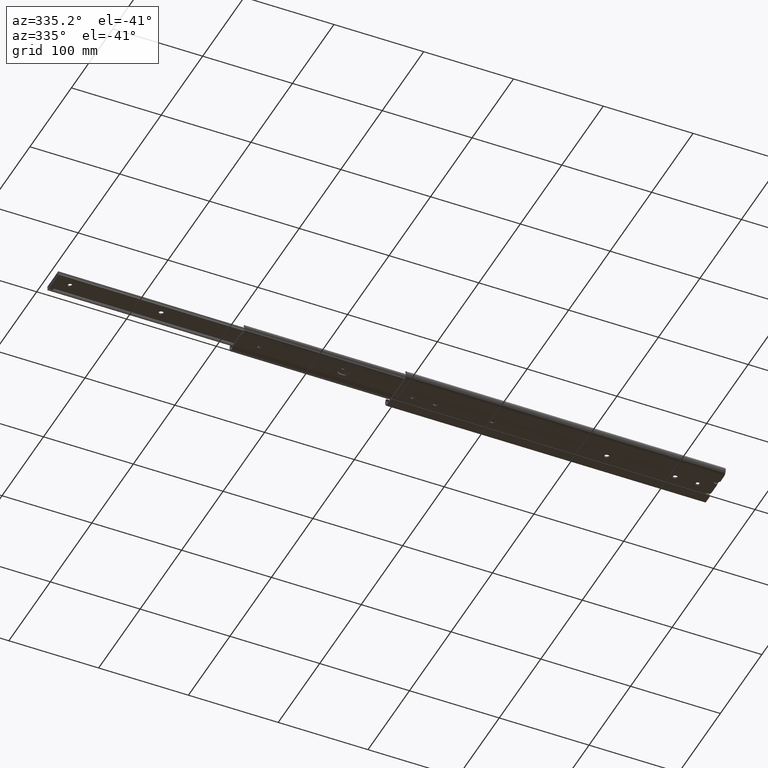
[diagram: clean part render]
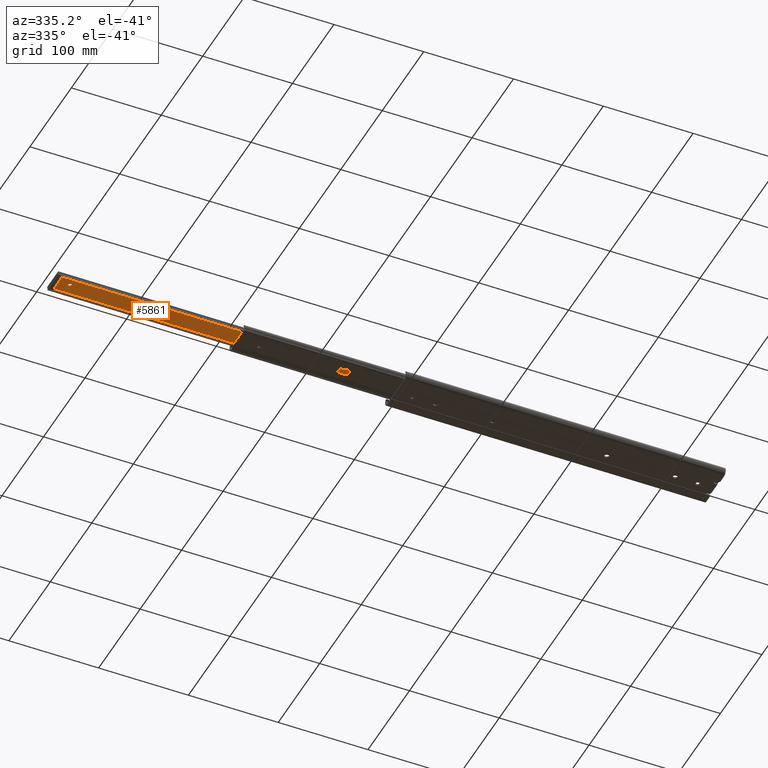
[diagram: same view with one face highlighted and labeled with its STEP entity id]
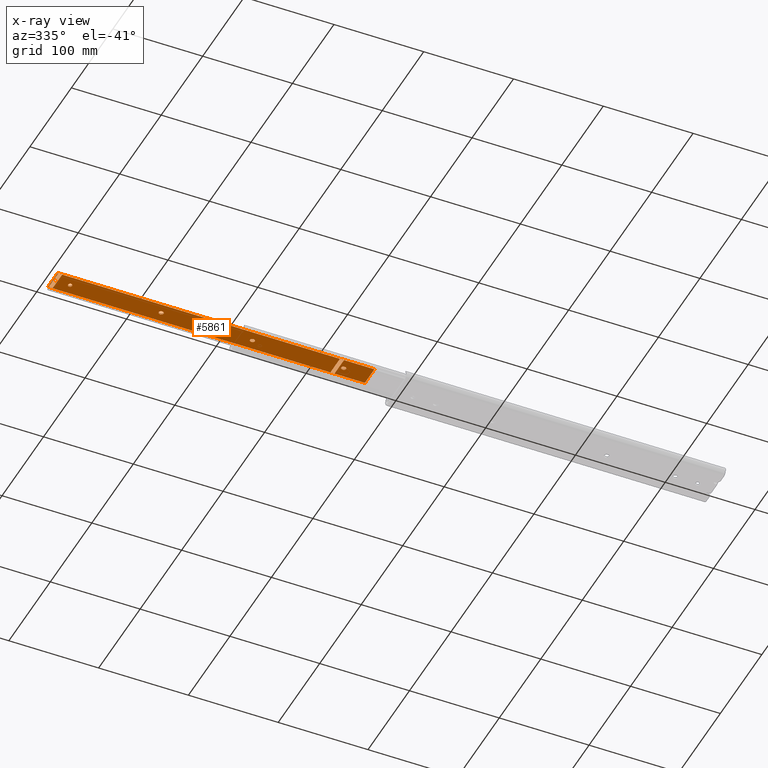
[diagram: x-ray of the same camera — body ghosted, the highlighted face saturated]
A machine part, auxiliary view. The second image highlights one B-rep face of the part: STEP entity #5861.
The next image is the same camera in x-ray: the body ghosted, the highlighted face saturated — about 0% of this face is hidden behind the body in this view.
In plain terms, the highlighted planar face has unit normal (0, -0, -1).
Its self-contained STEP definition (entity closure, byte-faithful):
#17 = VERTEX_POINT ( 'NONE', #5053 ) ;
#94 = VERTEX_POINT ( 'NONE', #1399 ) ;
#98 = FACE_BOUND ( 'NONE', #6594, .T. ) ;
#159 = CIRCLE ( 'NONE', #7297, 2.249999999999999100 ) ;
#167 = LINE ( 'NONE', #947, #6438 ) ;
#200 = EDGE_CURVE ( 'NONE', #6894, #4006, #6104, .T. ) ;
#232 = LINE ( 'NONE', #2654, #4886 ) ;
#288 = ORIENTED_EDGE ( 'NONE', *, *, #588, .F. ) ;
#291 = CARTESIAN_POINT ( 'NONE',  ( 323.5000000000000000, 5.588865424958728100E-015, -1.599999999999959500 ) ) ;
#294 = FACE_BOUND ( 'NONE', #4866, .T. ) ;
#316 = EDGE_LOOP ( 'NONE', ( #778, #6200, #5467, #891 ) ) ;
#338 = VECTOR ( 'NONE', #826, 1000.000000000000000 ) ;
#356 = CARTESIAN_POINT ( 'NONE',  ( 120.3000000000000000, 5.588865424958728100E-015, -1.599999999999959500 ) ) ;
#401 = AXIS2_PLACEMENT_3D ( 'NONE', #4529, #901, #5163 ) ;
#478 = VERTEX_POINT ( 'NONE', #6080 ) ;
#532 = EDGE_CURVE ( 'NONE', #478, #3820, #2227, .T. ) ;
#585 = EDGE_CURVE ( 'NONE', #7189, #2140, #3316, .T. ) ;
#588 = EDGE_CURVE ( 'NONE', #2140, #7189, #4941, .T. ) ;
#594 = CARTESIAN_POINT ( 'NONE',  ( 221.8999999999999800, 5.588865424958728100E-015, -1.599999999999959500 ) ) ;
#602 = VECTOR ( 'NONE', #4926, 1000.000000000000000 ) ;
#627 = VERTEX_POINT ( 'NONE', #2065 ) ;
#703 = VERTEX_POINT ( 'NONE', #5578 ) ;
#720 = CARTESIAN_POINT ( 'NONE',  ( 324.3000000000000100, 2.249999999999999100, -1.599999999999959900 ) ) ;
#778 = ORIENTED_EDGE ( 'NONE', *, *, #7596, .F. ) ;
#803 = CARTESIAN_POINT ( 'NONE',  ( 318.8999999999999800, 11.00000000000000000, -1.599999999999960800 ) ) ;
#826 = DIRECTION ( 'NONE',  ( -1.000000000000000000, 0.0000000000000000000, 0.0000000000000000000 ) ) ;
#835 = CARTESIAN_POINT ( 'NONE',  ( 314.4000000000000300, 11.00000000000000000, -1.599999999999960800 ) ) ;
#891 = ORIENTED_EDGE ( 'NONE', *, *, #200, .F. ) ;
#901 = DIRECTION ( 'NONE',  ( 0.0000000000000000000, -1.313188302234630400E-016, -1.000000000000000000 ) ) ;
#910 = DIRECTION ( 'NONE',  ( 0.0000000000000000000, 1.000000000000000000, -9.637352644315598900E-017 ) ) ;
#921 = CARTESIAN_POINT ( 'NONE',  ( 222.7000000000000200, 5.686837168890518100E-015, -1.599999999999959500 ) ) ;
#933 = VERTEX_POINT ( 'NONE', #6491 ) ;
#947 = CARTESIAN_POINT ( 'NONE',  ( 352.8000000000000100, 2.249999999999998700, -1.599999999999959500 ) ) ;
#985 = DIRECTION ( 'NONE',  ( 0.0000000000000000000, 1.000000000000000000, -9.637352644315598900E-017 ) ) ;
#1088 = VECTOR ( 'NONE', #4314, 1000.000000000000000 ) ;
#1116 = ORIENTED_EDGE ( 'NONE', *, *, #1292, .F. ) ;
#1120 = VECTOR ( 'NONE', #2499, 1000.000000000000000 ) ;
#1136 = ORIENTED_EDGE ( 'NONE', *, *, #585, .F. ) ;
#1149 = ORIENTED_EDGE ( 'NONE', *, *, #4191, .F. ) ;
#1199 = DIRECTION ( 'NONE',  ( 0.0000000000000000000, 1.000000000000000000, -9.637352644315598900E-017 ) ) ;
#1245 = VECTOR ( 'NONE', #2434, 1000.000000000000000 ) ;
#1261 = ORIENTED_EDGE ( 'NONE', *, *, #532, .F. ) ;
#1292 = EDGE_CURVE ( 'NONE', #7730, #2326, #5231, .T. ) ;
#1359 = CARTESIAN_POINT ( 'NONE',  ( 121.1000000000000100, 5.686837168890518100E-015, -1.599999999999959500 ) ) ;
#1399 = CARTESIAN_POINT ( 'NONE',  ( 222.7000000000000200, 2.249999999999999100, -1.599999999999959900 ) ) ;
#1427 = AXIS2_PLACEMENT_3D ( 'NONE', #3777, #4372, #3748 ) ;
#1461 = EDGE_CURVE ( 'NONE', #7728, #7579, #2453, .T. ) ;
#1537 = DIRECTION ( 'NONE',  ( 0.0000000000000000000, 1.000000000000000000, -9.637352644315598900E-017 ) ) ;
#1561 = DIRECTION ( 'NONE',  ( 1.000000000000000000, 0.0000000000000000000, 0.0000000000000000000 ) ) ;
#1572 = DIRECTION ( 'NONE',  ( 0.0000000000000000000, -1.313188302234630400E-016, -1.000000000000000000 ) ) ;
#1668 = EDGE_CURVE ( 'NONE', #6716, #7590, #4153, .T. ) ;
#1729 = FACE_BOUND ( 'NONE', #3523, .T. ) ;
#1746 = ORIENTED_EDGE ( 'NONE', *, *, #7294, .F. ) ;
#1751 = DIRECTION ( 'NONE',  ( 0.0000000000000000000, -1.313188302234630400E-016, -1.000000000000000000 ) ) ;
#1775 = EDGE_CURVE ( 'NONE', #703, #6783, #159, .T. ) ;
#1788 = VECTOR ( 'NONE', #2620, 1000.000000000000000 ) ;
#1805 = CARTESIAN_POINT ( 'NONE',  ( 324.3000000000000100, -2.249999999999998700, -1.599999999999959000 ) ) ;
#1810 = CARTESIAN_POINT ( 'NONE',  ( 323.5000000000000000, 2.249999999999999100, -1.599999999999959500 ) ) ;
#1841 = DIRECTION ( 'NONE',  ( 1.000000000000000000, -0.0000000000000000000, -0.0000000000000000000 ) ) ;
#1842 = VERTEX_POINT ( 'NONE', #2779 ) ;
#1866 = ORIENTED_EDGE ( 'NONE', *, *, #7788, .F. ) ;
#1880 = CARTESIAN_POINT ( 'NONE',  ( 0.0000000000000000000, -11.55876151879170900, -1.599999999999957900 ) ) ;
#1938 = VECTOR ( 'NONE', #3460, 1000.000000000000000 ) ;
#1952 = CARTESIAN_POINT ( 'NONE',  ( 352.8000000000000100, -11.55876151879170900, -1.599999999999957900 ) ) ;
#1962 = DIRECTION ( 'NONE',  ( 0.0000000000000000000, 1.000000000000000000, -9.637352644315598900E-017 ) ) ;
#1969 = PLANE ( 'NONE',  #4258 ) ;
#1974 = AXIS2_PLACEMENT_3D ( 'NONE', #1359, #5620, #1962 ) ;
#2021 = ORIENTED_EDGE ( 'NONE', *, *, #2492, .F. ) ;
#2040 = CARTESIAN_POINT ( 'NONE',  ( 0.5000000000000022200, 11.00000000000000000, -1.599999999999960800 ) ) ;
#2049 = LINE ( 'NONE', #6549, #5289 ) ;
#2065 = CARTESIAN_POINT ( 'NONE',  ( 5.000000000000001800, 11.00000000000000000, -1.599999999999960800 ) ) ;
#2120 = CARTESIAN_POINT ( 'NONE',  ( 221.8999999999999800, -2.249999999999999100, -1.599999999999959000 ) ) ;
#2140 = VERTEX_POINT ( 'NONE', #5480 ) ;
#2227 = LINE ( 'NONE', #3618, #602 ) ;
#2242 = AXIS2_PLACEMENT_3D ( 'NONE', #7446, #1572, #4564 ) ;
#2281 = VERTEX_POINT ( 'NONE', #3203 ) ;
#2326 = VERTEX_POINT ( 'NONE', #4485 ) ;
#2353 = VECTOR ( 'NONE', #4986, 1000.000000000000000 ) ;
#2384 = ORIENTED_EDGE ( 'NONE', *, *, #6972, .F. ) ;
#2434 = DIRECTION ( 'NONE',  ( -1.000000000000000000, 0.0000000000000000000, 0.0000000000000000000 ) ) ;
#2453 = CIRCLE ( 'NONE', #3407, 2.249999999999999100 ) ;
#2480 = EDGE_CURVE ( 'NONE', #6791, #7728, #4666, .T. ) ;
#2492 = EDGE_CURVE ( 'NONE', #6783, #5203, #2686, .T. ) ;
#2499 = DIRECTION ( 'NONE',  ( -1.000000000000000000, 0.0000000000000000000, 0.0000000000000000000 ) ) ;
#2542 = EDGE_CURVE ( 'NONE', #4006, #627, #4097, .T. ) ;
#2620 = DIRECTION ( 'NONE',  ( 0.0000000000000000000, -1.000000000000000000, 1.379893674072460500E-016 ) ) ;
#2638 = CARTESIAN_POINT ( 'NONE',  ( 318.8999999999999800, -11.00000000000000000, -1.599999999999957900 ) ) ;
#2654 = CARTESIAN_POINT ( 'NONE',  ( 314.3999999999999800, 11.00000000000000000, -1.599999999999960800 ) ) ;
#2686 = LINE ( 'NONE', #6054, #1245 ) ;
#2692 = DIRECTION ( 'NONE',  ( 0.0000000000000000000, -1.313188302234630400E-016, -1.000000000000000000 ) ) ;
#2736 = LINE ( 'NONE', #7298, #1120 ) ;
#2749 = ORIENTED_EDGE ( 'NONE', *, *, #7632, .F. ) ;
#2776 = CIRCLE ( 'NONE', #5787, 2.249999999999999100 ) ;
#2779 = CARTESIAN_POINT ( 'NONE',  ( 352.8000000000000100, 11.55876151879170900, -1.599999999999960800 ) ) ;
#2821 = DIRECTION ( 'NONE',  ( 1.000000000000000000, 0.0000000000000000000, 0.0000000000000000000 ) ) ;
#2825 = CARTESIAN_POINT ( 'NONE',  ( 4.999999999999999100, -11.00000000000000000, -1.599999999999957900 ) ) ;
#2864 = EDGE_CURVE ( 'NONE', #3820, #6891, #4851, .T. ) ;
#2915 = EDGE_CURVE ( 'NONE', #6891, #6898, #3040, .T. ) ;
#2919 = DIRECTION ( 'NONE',  ( -1.000000000000000000, -0.0000000000000000000, -0.0000000000000000000 ) ) ;
#3010 = CIRCLE ( 'NONE', #6696, 2.249999999999999100 ) ;
#3037 = LINE ( 'NONE', #7123, #7666 ) ;
#3040 = LINE ( 'NONE', #4628, #5889 ) ;
#3116 = EDGE_LOOP ( 'NONE', ( #6261, #1149, #3245, #5102 ) ) ;
#3127 = ORIENTED_EDGE ( 'NONE', *, *, #4671, .F. ) ;
#3131 = ORIENTED_EDGE ( 'NONE', *, *, #5483, .F. ) ;
#3168 = EDGE_CURVE ( 'NONE', #1842, #6716, #7578, .T. ) ;
#3184 = CARTESIAN_POINT ( 'NONE',  ( 352.8000000000000100, 11.55876151879170900, -1.599999999999960800 ) ) ;
#3193 = CIRCLE ( 'NONE', #5506, 2.249999999999999100 ) ;
#3203 = CARTESIAN_POINT ( 'NONE',  ( 221.8999999999999800, 2.249999999999999100, -1.599999999999959500 ) ) ;
#3228 = CARTESIAN_POINT ( 'NONE',  ( 318.8999999999999800, 11.00000000000000000, -1.599999999999960800 ) ) ;
#3235 = CARTESIAN_POINT ( 'NONE',  ( 0.4999999999999997800, -11.00000000000000000, -1.599999999999957900 ) ) ;
#3245 = ORIENTED_EDGE ( 'NONE', *, *, #3168, .T. ) ;
#3316 = CIRCLE ( 'NONE', #1427, 2.250000000000002200 ) ;
#3321 = CARTESIAN_POINT ( 'NONE',  ( 352.8000000000000100, 2.249999999999998700, -1.599999999999959500 ) ) ;
#3331 = FACE_BOUND ( 'NONE', #4404, .T. ) ;
#3407 = AXIS2_PLACEMENT_3D ( 'NONE', #5389, #1751, #5987 ) ;
#3460 = DIRECTION ( 'NONE',  ( -1.182766006347823100E-016, -1.000000000000000000, 1.379893674072460500E-016 ) ) ;
#3501 = CARTESIAN_POINT ( 'NONE',  ( 352.8000000000000100, -2.249999999999998700, -1.599999999999959000 ) ) ;
#3523 = EDGE_LOOP ( 'NONE', ( #4412, #1261, #7081, #6138, #7743 ) ) ;
#3528 = DIRECTION ( 'NONE',  ( -1.000000000000000000, 0.0000000000000000000, 0.0000000000000000000 ) ) ;
#3610 = AXIS2_PLACEMENT_3D ( 'NONE', #3619, #7827, #4227 ) ;
#3618 = CARTESIAN_POINT ( 'NONE',  ( 352.8000000000000100, -2.249999999999998700, -1.599999999999959000 ) ) ;
#3619 = CARTESIAN_POINT ( 'NONE',  ( 324.3000000000000100, 5.686837168890518100E-015, -1.599999999999959500 ) ) ;
#3651 = LINE ( 'NONE', #3501, #6679 ) ;
#3716 = CARTESIAN_POINT ( 'NONE',  ( 120.3000000000000000, -2.249999999999999100, -1.599999999999959000 ) ) ;
#3748 = DIRECTION ( 'NONE',  ( 0.0000000000000000000, 1.000000000000000000, -9.637352644315585400E-017 ) ) ;
#3777 = CARTESIAN_POINT ( 'NONE',  ( 19.10000000000000100, 0.0000000000000000000, -1.599999999999959000 ) ) ;
#3796 = DIRECTION ( 'NONE',  ( 0.0000000000000000000, 1.000000000000000000, -1.313188302234630400E-016 ) ) ;
#3820 = VERTEX_POINT ( 'NONE', #3716 ) ;
#3824 = CARTESIAN_POINT ( 'NONE',  ( 120.3000000000000000, 2.249999999999999100, -1.599999999999959500 ) ) ;
#3827 = CARTESIAN_POINT ( 'NONE',  ( 16.85000000000000100, 2.755455298081548200E-016, -1.599999999999959000 ) ) ;
#4006 = VERTEX_POINT ( 'NONE', #7541 ) ;
#4073 = VECTOR ( 'NONE', #6961, 1000.000000000000000 ) ;
#4097 = LINE ( 'NONE', #6082, #7109 ) ;
#4153 = LINE ( 'NONE', #1952, #2353 ) ;
#4191 = EDGE_CURVE ( 'NONE', #1842, #17, #2049, .T. ) ;
#4192 = EDGE_CURVE ( 'NONE', #7579, #4965, #3651, .T. ) ;
#4227 = DIRECTION ( 'NONE',  ( 0.0000000000000000000, 1.000000000000000000, -9.637352644315598900E-017 ) ) ;
#4258 = AXIS2_PLACEMENT_3D ( 'NONE', #3184, #7417, #3796 ) ;
#4311 = CIRCLE ( 'NONE', #401, 2.249999999999999100 ) ;
#4314 = DIRECTION ( 'NONE',  ( 1.084202172485504600E-016, 1.000000000000000000, -1.379893674072460500E-016 ) ) ;
#4356 = CARTESIAN_POINT ( 'NONE',  ( 222.7000000000000200, -2.249999999999998700, -1.599999999999959000 ) ) ;
#4372 = DIRECTION ( 'NONE',  ( 0.0000000000000000000, -1.313188302234630400E-016, -1.000000000000000000 ) ) ;
#4404 = EDGE_LOOP ( 'NONE', ( #1866, #4931, #6910, #4554, #2384 ) ) ;
#4412 = ORIENTED_EDGE ( 'NONE', *, *, #2864, .F. ) ;
#4413 = ORIENTED_EDGE ( 'NONE', *, *, #1775, .F. ) ;
#4449 = EDGE_CURVE ( 'NONE', #2326, #933, #6763, .T. ) ;
#4485 = CARTESIAN_POINT ( 'NONE',  ( 318.8999999999999800, -11.00000000000000000, -1.599999999999957900 ) ) ;
#4486 = EDGE_LOOP ( 'NONE', ( #5133, #1116, #2749, #3127 ) ) ;
#4529 = CARTESIAN_POINT ( 'NONE',  ( 222.7000000000000200, 5.686837168890518100E-015, -1.599999999999959500 ) ) ;
#4536 = DIRECTION ( 'NONE',  ( 0.0000000000000000000, -1.313188302234630400E-016, -1.000000000000000000 ) ) ;
#4554 = ORIENTED_EDGE ( 'NONE', *, *, #2480, .F. ) ;
#4564 = DIRECTION ( 'NONE',  ( 0.0000000000000000000, 1.000000000000000000, -9.637352644315585400E-017 ) ) ;
#4607 = DIRECTION ( 'NONE',  ( 0.0000000000000000000, -1.313188302234630400E-016, -1.000000000000000000 ) ) ;
#4628 = CARTESIAN_POINT ( 'NONE',  ( 352.8000000000000100, 2.249999999999998700, -1.599999999999959500 ) ) ;
#4666 = CIRCLE ( 'NONE', #3610, 2.249999999999999100 ) ;
#4671 = EDGE_CURVE ( 'NONE', #933, #7169, #232, .T. ) ;
#4731 = EDGE_CURVE ( 'NONE', #94, #703, #4311, .T. ) ;
#4756 = FACE_BOUND ( 'NONE', #4486, .T. ) ;
#4836 = DIRECTION ( 'NONE',  ( 0.0000000000000000000, -1.313188302234630400E-016, -1.000000000000000000 ) ) ;
#4851 = CIRCLE ( 'NONE', #5510, 2.249999999999999100 ) ;
#4855 = CIRCLE ( 'NONE', #1974, 2.249999999999999100 ) ;
#4857 = VERTEX_POINT ( 'NONE', #2825 ) ;
#4866 = EDGE_LOOP ( 'NONE', ( #3131, #2021, #4413, #7401, #1746 ) ) ;
#4873 = EDGE_CURVE ( 'NONE', #627, #4857, #6582, .T. ) ;
#4886 = VECTOR ( 'NONE', #5009, 1000.000000000000000 ) ;
#4926 = DIRECTION ( 'NONE',  ( -1.000000000000000000, 0.0000000000000000000, 0.0000000000000000000 ) ) ;
#4931 = ORIENTED_EDGE ( 'NONE', *, *, #4192, .F. ) ;
#4941 = CIRCLE ( 'NONE', #2242, 2.250000000000002200 ) ;
#4965 = VERTEX_POINT ( 'NONE', #5363 ) ;
#4986 = DIRECTION ( 'NONE',  ( -1.000000000000000000, -0.0000000000000000000, -0.0000000000000000000 ) ) ;
#5009 = DIRECTION ( 'NONE',  ( -0.0000000000000000000, 1.000000000000000000, -1.379893674072460500E-016 ) ) ;
#5035 = CARTESIAN_POINT ( 'NONE',  ( 123.3500000000000100, 5.686837168890518100E-015, -1.599999999999959500 ) ) ;
#5053 = CARTESIAN_POINT ( 'NONE',  ( 0.0000000000000000000, 11.55876151879170900, -1.599999999999960800 ) ) ;
#5091 = CARTESIAN_POINT ( 'NONE',  ( 121.1000000000000100, 2.249999999999999100, -1.599999999999959900 ) ) ;
#5102 = ORIENTED_EDGE ( 'NONE', *, *, #1668, .T. ) ;
#5133 = ORIENTED_EDGE ( 'NONE', *, *, #4449, .F. ) ;
#5162 = FACE_BOUND ( 'NONE', #316, .T. ) ;
#5163 = DIRECTION ( 'NONE',  ( 0.0000000000000000000, 1.000000000000000000, -9.637352644315598900E-017 ) ) ;
#5187 = DIRECTION ( 'NONE',  ( 0.0000000000000000000, -1.313188302234630400E-016, -1.000000000000000000 ) ) ;
#5203 = VERTEX_POINT ( 'NONE', #2120 ) ;
#5231 = LINE ( 'NONE', #803, #1788 ) ;
#5289 = VECTOR ( 'NONE', #2919, 1000.000000000000000 ) ;
#5363 = CARTESIAN_POINT ( 'NONE',  ( 323.5000000000000000, -2.249999999999999100, -1.599999999999959000 ) ) ;
#5381 = DIRECTION ( 'NONE',  ( 0.0000000000000000000, -1.000000000000000000, 1.313188302234630400E-016 ) ) ;
#5389 = CARTESIAN_POINT ( 'NONE',  ( 324.3000000000000100, 5.686837168890518100E-015, -1.599999999999959500 ) ) ;
#5467 = ORIENTED_EDGE ( 'NONE', *, *, #2542, .F. ) ;
#5480 = CARTESIAN_POINT ( 'NONE',  ( 21.35000000000000500, 0.0000000000000000000, -1.599999999999959000 ) ) ;
#5483 = EDGE_CURVE ( 'NONE', #5203, #2281, #2776, .T. ) ;
#5500 = VERTEX_POINT ( 'NONE', #1810 ) ;
#5506 = AXIS2_PLACEMENT_3D ( 'NONE', #6311, #2692, #6897 ) ;
#5510 = AXIS2_PLACEMENT_3D ( 'NONE', #356, #4607, #985 ) ;
#5578 = CARTESIAN_POINT ( 'NONE',  ( 224.9500000000000200, 5.686837168890518100E-015, -1.599999999999959500 ) ) ;
#5590 = VECTOR ( 'NONE', #6184, 1000.000000000000000 ) ;
#5620 = DIRECTION ( 'NONE',  ( 0.0000000000000000000, -1.313188302234630400E-016, -1.000000000000000000 ) ) ;
#5674 = EDGE_CURVE ( 'NONE', #5869, #478, #4855, .T. ) ;
#5696 = LINE ( 'NONE', #3321, #4073 ) ;
#5787 = AXIS2_PLACEMENT_3D ( 'NONE', #594, #4836, #1199 ) ;
#5861 = ADVANCED_FACE ( 'NONE', ( #3331, #294, #1729, #98, #6370, #5162, #4756 ), #1969, .T. ) ;
#5869 = VERTEX_POINT ( 'NONE', #5035 ) ;
#5879 = CARTESIAN_POINT ( 'NONE',  ( 352.8000000000000100, 11.55876151879170900, -1.599999999999960800 ) ) ;
#5889 = VECTOR ( 'NONE', #2821, 1000.000000000000000 ) ;
#5987 = DIRECTION ( 'NONE',  ( 0.0000000000000000000, 1.000000000000000000, -9.637352644315598900E-017 ) ) ;
#6054 = CARTESIAN_POINT ( 'NONE',  ( 352.8000000000000100, -2.249999999999998700, -1.599999999999959000 ) ) ;
#6080 = CARTESIAN_POINT ( 'NONE',  ( 121.1000000000000100, -2.249999999999998700, -1.599999999999959000 ) ) ;
#6082 = CARTESIAN_POINT ( 'NONE',  ( 5.000000000000001800, 11.00000000000000000, -1.599999999999960800 ) ) ;
#6104 = LINE ( 'NONE', #2040, #1088 ) ;
#6117 = EDGE_CURVE ( 'NONE', #17, #7590, #3037, .T. ) ;
#6138 = ORIENTED_EDGE ( 'NONE', *, *, #7768, .F. ) ;
#6152 = CARTESIAN_POINT ( 'NONE',  ( 318.8999999999999800, 11.00000000000000000, -1.599999999999960800 ) ) ;
#6184 = DIRECTION ( 'NONE',  ( 1.000000000000000000, -0.0000000000000000000, -0.0000000000000000000 ) ) ;
#6200 = ORIENTED_EDGE ( 'NONE', *, *, #4873, .F. ) ;
#6261 = ORIENTED_EDGE ( 'NONE', *, *, #6117, .F. ) ;
#6311 = CARTESIAN_POINT ( 'NONE',  ( 121.1000000000000100, 5.686837168890518100E-015, -1.599999999999959500 ) ) ;
#6370 = FACE_OUTER_BOUND ( 'NONE', #3116, .T. ) ;
#6438 = VECTOR ( 'NONE', #1561, 1000.000000000000000 ) ;
#6491 = CARTESIAN_POINT ( 'NONE',  ( 314.3999999999999800, -11.00000000000000000, -1.599999999999957900 ) ) ;
#6549 = CARTESIAN_POINT ( 'NONE',  ( 352.8000000000000100, 11.55876151879170900, -1.599999999999960800 ) ) ;
#6578 = CARTESIAN_POINT ( 'NONE',  ( 352.8000000000000100, -11.55876151879170900, -1.599999999999957900 ) ) ;
#6582 = LINE ( 'NONE', #7069, #1938 ) ;
#6594 = EDGE_LOOP ( 'NONE', ( #288, #1136 ) ) ;
#6679 = VECTOR ( 'NONE', #3528, 1000.000000000000000 ) ;
#6696 = AXIS2_PLACEMENT_3D ( 'NONE', #291, #4536, #910 ) ;
#6716 = VERTEX_POINT ( 'NONE', #6578 ) ;
#6763 = LINE ( 'NONE', #2638, #338 ) ;
#6783 = VERTEX_POINT ( 'NONE', #4356 ) ;
#6791 = VERTEX_POINT ( 'NONE', #720 ) ;
#6818 = CARTESIAN_POINT ( 'NONE',  ( 326.5500000000000100, 5.686837168890518100E-015, -1.599999999999959500 ) ) ;
#6891 = VERTEX_POINT ( 'NONE', #3824 ) ;
#6894 = VERTEX_POINT ( 'NONE', #3235 ) ;
#6897 = DIRECTION ( 'NONE',  ( 0.0000000000000000000, 1.000000000000000000, -9.637352644315598900E-017 ) ) ;
#6898 = VERTEX_POINT ( 'NONE', #5091 ) ;
#6910 = ORIENTED_EDGE ( 'NONE', *, *, #1461, .F. ) ;
#6961 = DIRECTION ( 'NONE',  ( 1.000000000000000000, 0.0000000000000000000, 0.0000000000000000000 ) ) ;
#6972 = EDGE_CURVE ( 'NONE', #5500, #6791, #5696, .T. ) ;
#7069 = CARTESIAN_POINT ( 'NONE',  ( 5.000000000000001800, 11.00000000000000000, -1.599999999999960800 ) ) ;
#7081 = ORIENTED_EDGE ( 'NONE', *, *, #5674, .F. ) ;
#7109 = VECTOR ( 'NONE', #1841, 1000.000000000000000 ) ;
#7123 = CARTESIAN_POINT ( 'NONE',  ( 0.0000000000000000000, 11.55876151879170900, -1.599999999999960800 ) ) ;
#7161 = LINE ( 'NONE', #6152, #5590 ) ;
#7169 = VERTEX_POINT ( 'NONE', #835 ) ;
#7189 = VERTEX_POINT ( 'NONE', #3827 ) ;
#7294 = EDGE_CURVE ( 'NONE', #2281, #94, #167, .T. ) ;
#7297 = AXIS2_PLACEMENT_3D ( 'NONE', #921, #5187, #1537 ) ;
#7298 = CARTESIAN_POINT ( 'NONE',  ( 4.999999999999999100, -11.00000000000000000, -1.599999999999957900 ) ) ;
#7381 = VECTOR ( 'NONE', #7708, 1000.000000000000000 ) ;
#7401 = ORIENTED_EDGE ( 'NONE', *, *, #4731, .F. ) ;
#7417 = DIRECTION ( 'NONE',  ( 0.0000000000000000000, -1.313188302234630400E-016, -1.000000000000000000 ) ) ;
#7446 = CARTESIAN_POINT ( 'NONE',  ( 19.10000000000000100, 0.0000000000000000000, -1.599999999999959000 ) ) ;
#7541 = CARTESIAN_POINT ( 'NONE',  ( 0.5000000000000004400, 11.00000000000000000, -1.599999999999960800 ) ) ;
#7578 = LINE ( 'NONE', #5879, #7381 ) ;
#7579 = VERTEX_POINT ( 'NONE', #1805 ) ;
#7590 = VERTEX_POINT ( 'NONE', #1880 ) ;
#7596 = EDGE_CURVE ( 'NONE', #4857, #6894, #2736, .T. ) ;
#7632 = EDGE_CURVE ( 'NONE', #7169, #7730, #7161, .T. ) ;
#7666 = VECTOR ( 'NONE', #5381, 1000.000000000000000 ) ;
#7708 = DIRECTION ( 'NONE',  ( 0.0000000000000000000, -1.000000000000000000, 1.313188302234630400E-016 ) ) ;
#7728 = VERTEX_POINT ( 'NONE', #6818 ) ;
#7730 = VERTEX_POINT ( 'NONE', #3228 ) ;
#7743 = ORIENTED_EDGE ( 'NONE', *, *, #2915, .F. ) ;
#7768 = EDGE_CURVE ( 'NONE', #6898, #5869, #3193, .T. ) ;
#7788 = EDGE_CURVE ( 'NONE', #4965, #5500, #3010, .T. ) ;
#7827 = DIRECTION ( 'NONE',  ( 0.0000000000000000000, -1.313188302234630400E-016, -1.000000000000000000 ) ) ;